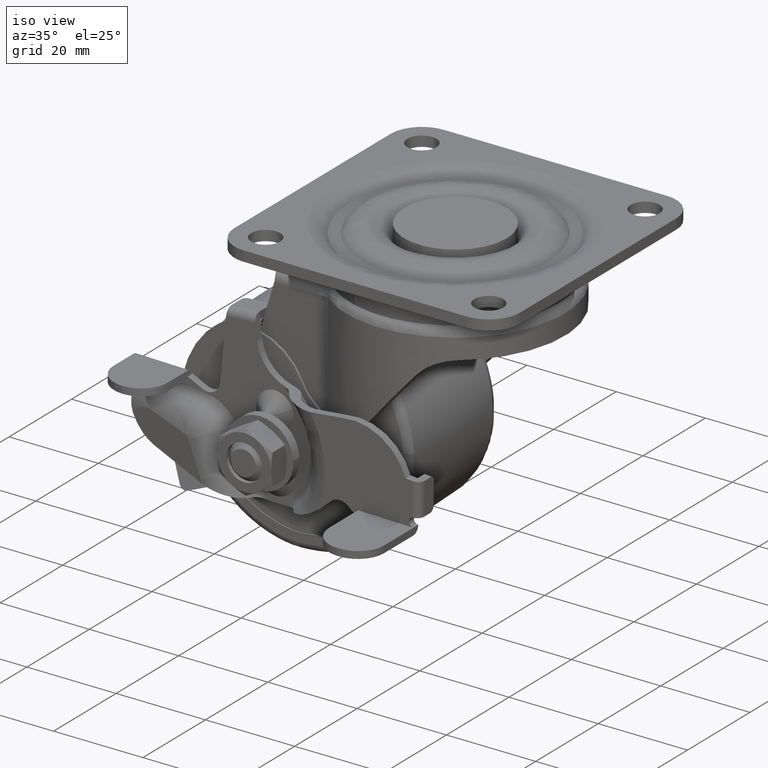
[diagram: clean part render]
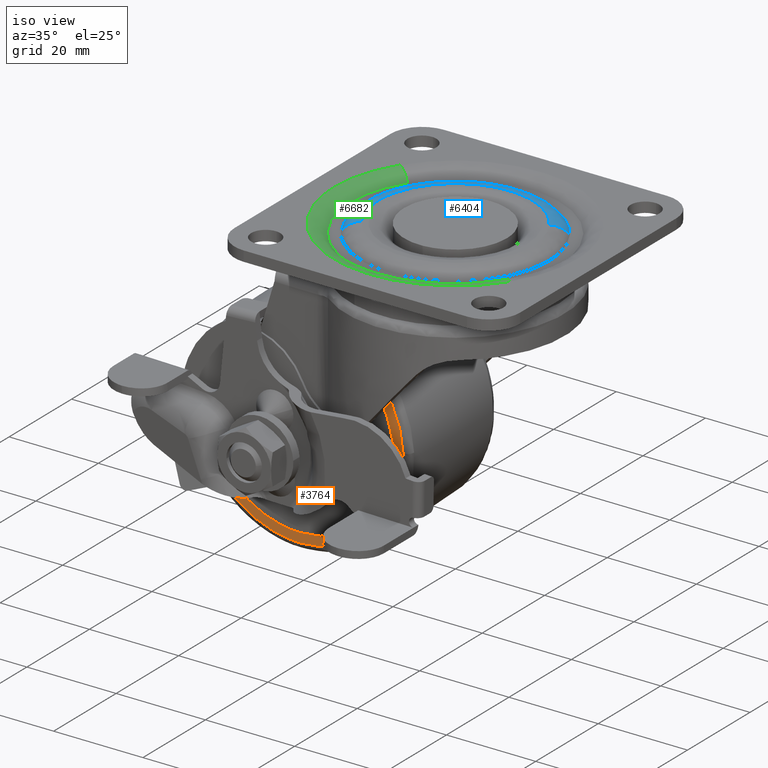
[diagram: same view with three faces highlighted in distinct colors, each labeled with its STEP entity id]
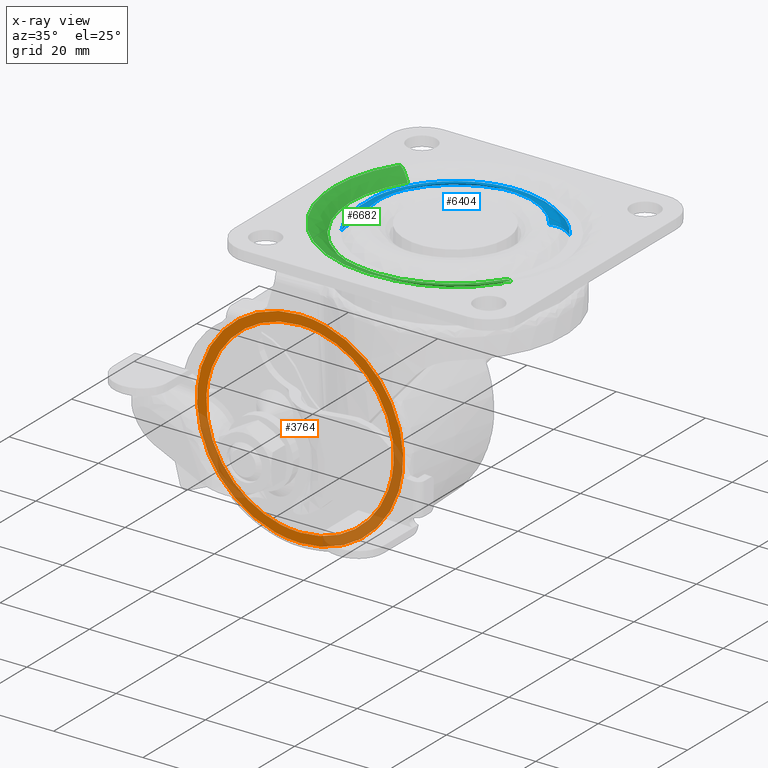
[diagram: x-ray of the same camera — body ghosted, the three highlighted faces saturated]
A machine part, iso view with three faces highlighted in distinct colors.
The next image is the same camera in x-ray (body ghosted, the three faces saturated) — at least one of them is partly hidden behind the body in this view.
Their STEP definitions:

[orange] entity #3764 — the highlighted face is a freeform B-spline surface patch.
#3564=CARTESIAN_POINT('',(-1.923151702728333,-14.0,-41.839053165172963));
#3565=VERTEX_POINT('',#3564);
#3579=CARTESIAN_POINT('',(-25.0,-14.0,-66.106032215074151));
#3580=VERTEX_POINT('',#3579);
#3581=CARTESIAN_POINT('',(-25.0,-14.0,-66.106032215074151));
#3582=CARTESIAN_POINT('',(-1.893967783235023,-13.999999999999998,-66.106032214989085));
#3583=CARTESIAN_POINT('',(-1.893967781456993,-14.0,-42.999999999825476));
#3584=CARTESIAN_POINT('',(-1.893967781412293,-14.000000000000004,-42.419159769290992));
#3585=CARTESIAN_POINT('',(-1.923151702728333,-14.000000000000004,-41.839053165172956));
#3593=(BOUNDED_CURVE()B_SPLINE_CURVE(2,(#3581,#3582,#3583,#3584,#3585),.UNSPECIFIED.,.F.,.U.)B_SPLINE_CURVE_WITH_KNOTS((3,2,3),(0.0,0.250000000000000,0.258796048279877),.UNSPECIFIED.)CURVE()GEOMETRIC_REPRESENTATION_ITEM()RATIONAL_B_SPLINE_CURVE((1.0,0.707106781186548,1.0,0.989694788425873,0.980114737960068))REPRESENTATION_ITEM(''));
#3594=EDGE_CURVE('',#3580,#3565,#3593,.T.);
#3596=CARTESIAN_POINT('',(-48.076848297271667,-14.0,-44.160946834827037));
#3597=VERTEX_POINT('',#3596);
#3598=CARTESIAN_POINT('',(-48.076848297271681,-14.000000000000004,-44.160946834827037));
#3599=CARTESIAN_POINT('',(-46.972838030130539,-14.000000000000004,-66.106032215163594));
#3600=CARTESIAN_POINT('',(-25.0,-14.0,-66.106032215074151));
#3608=(BOUNDED_CURVE()B_SPLINE_CURVE(2,(#3598,#3599,#3600),.UNSPECIFIED.,.F.,.U.)B_SPLINE_CURVE_WITH_KNOTS((3,3),(0.758796048279877,1.0),.UNSPECIFIED.)CURVE()GEOMETRIC_REPRESENTATION_ITEM()RATIONAL_B_SPLINE_CURVE((0.980114737960068,0.717411992760675,1.0))REPRESENTATION_ITEM(''));
#3609=EDGE_CURVE('',#3597,#3580,#3608,.T.);
#3652=CARTESIAN_POINT('',(-25.0,-14.0,-19.893967784925849));
#3653=VERTEX_POINT('',#3652);
#3654=CARTESIAN_POINT('',(-25.0,-14.0,-19.893967784925849));
#3655=CARTESIAN_POINT('',(-48.106032216764987,-13.999999999999998,-19.893967785010915));
#3656=CARTESIAN_POINT('',(-48.106032218543007,-14.0,-43.000000000174524));
#3657=CARTESIAN_POINT('',(-48.106032218587714,-14.000000000000002,-43.580840230709001));
#3658=CARTESIAN_POINT('',(-48.076848297271674,-14.0,-44.160946834827037));
#3666=(BOUNDED_CURVE()B_SPLINE_CURVE(2,(#3654,#3655,#3656,#3657,#3658),.UNSPECIFIED.,.F.,.U.)B_SPLINE_CURVE_WITH_KNOTS((3,2,3),(0.500000000000000,0.750000000000000,0.758796048279877),.UNSPECIFIED.)CURVE()GEOMETRIC_REPRESENTATION_ITEM()RATIONAL_B_SPLINE_CURVE((1.0,0.707106781186548,1.0,0.989694788425873,0.980114737960069))REPRESENTATION_ITEM(''));
#3667=EDGE_CURVE('',#3653,#3597,#3666,.T.);
#3669=CARTESIAN_POINT('',(-1.923151702728333,-14.000000000000004,-41.839053165172956));
#3670=CARTESIAN_POINT('',(-3.027161969869454,-14.000000000000004,-19.893967784836384));
#3671=CARTESIAN_POINT('',(-25.0,-14.0,-19.893967784925849));
#3679=(BOUNDED_CURVE()B_SPLINE_CURVE(2,(#3669,#3670,#3671),.UNSPECIFIED.,.F.,.U.)B_SPLINE_CURVE_WITH_KNOTS((3,3),(0.258796048279877,0.500000000000000),.UNSPECIFIED.)CURVE()GEOMETRIC_REPRESENTATION_ITEM()RATIONAL_B_SPLINE_CURVE((0.980114737960068,0.717411992760675,1.0))REPRESENTATION_ITEM(''));
#3680=EDGE_CURVE('',#3565,#3653,#3679,.T.);
#3687=CARTESIAN_POINT('',(-50.414144722652573,-14.0,-68.414324743792108));
#3688=CARTESIAN_POINT('',(-50.414144722652573,-14.0,-17.585674016703731));
#3689=CARTESIAN_POINT('',(0.414144722652569,-14.0,-68.414324743792108));
#3690=CARTESIAN_POINT('',(0.414144722652569,-14.0,-17.585674016703731));
#3691=B_SPLINE_SURFACE_WITH_KNOTS('',1,1,((#3687,#3689),(#3688,#3690)),.UNSPECIFIED.,.F.,.F.,.U.,(2,2),(2,2),(0.0,50.828650727088380),(0.0,50.828289445305131),.UNSPECIFIED.);
#3692=ORIENTED_EDGE('',*,*,#3594,.T.);
#3693=ORIENTED_EDGE('',*,*,#3680,.T.);
#3694=ORIENTED_EDGE('',*,*,#3667,.T.);
#3695=ORIENTED_EDGE('',*,*,#3609,.T.);
#3696=EDGE_LOOP('',(#3692,#3693,#3694,#3695));
#3697=FACE_OUTER_BOUND('',#3696,.T.);
#3698=CARTESIAN_POINT('',(-25.0,-14.0,-22.0));
#3699=VERTEX_POINT('',#3698);
#3700=CARTESIAN_POINT('',(-45.960830893710551,-14.000000000000201,-41.717982743772509));
#3701=VERTEX_POINT('',#3700);
#3702=CARTESIAN_POINT('',(-25.0,-14.0,-22.0));
#3703=CARTESIAN_POINT('',(-44.754829363346836,-13.999999999999995,-21.999999999999996));
#3704=CARTESIAN_POINT('',(-45.960830893710657,-14.000000000000004,-41.717982743772495));
#3712=(BOUNDED_CURVE()B_SPLINE_CURVE(2,(#3702,#3703,#3704),.UNSPECIFIED.,.F.,.U.)B_SPLINE_CURVE_WITH_KNOTS((3,3),(0.500000000000000,0.739332979314900),.UNSPECIFIED.)CURVE()GEOMETRIC_REPRESENTATION_ITEM()RATIONAL_B_SPLINE_CURVE((1.0,0.719603973280982,0.976072078263746))REPRESENTATION_ITEM(''));
#3713=EDGE_CURVE('',#3699,#3701,#3712,.T.);
#3714=ORIENTED_EDGE('',*,*,#3713,.F.);
#3715=CARTESIAN_POINT('',(-4.039169106289453,-14.000000000000201,-44.282017256227512));
#3716=VERTEX_POINT('',#3715);
#3717=CARTESIAN_POINT('',(-4.039169106289453,-14.000000000000203,-44.282017256227505));
#3718=CARTESIAN_POINT('',(-4.000000000000001,-14.000000000000002,-43.641606989360476));
#3719=CARTESIAN_POINT('',(-4.0,-14.0,-43.0));
#3720=CARTESIAN_POINT('',(-4.0,-13.999999999999998,-21.999999999999993));
#3721=CARTESIAN_POINT('',(-25.0,-14.0,-22.0));
#3729=(BOUNDED_CURVE()B_SPLINE_CURVE(2,(#3717,#3718,#3719,#3720,#3721),.UNSPECIFIED.,.F.,.U.)B_SPLINE_CURVE_WITH_KNOTS((3,2,3),(0.239332979314900,0.250000000000000,0.500000000000000),.UNSPECIFIED.)CURVE()GEOMETRIC_REPRESENTATION_ITEM()RATIONAL_B_SPLINE_CURVE((0.976072078263746,0.987502807905565,1.0,0.707106781186547,1.0))REPRESENTATION_ITEM(''));
#3730=EDGE_CURVE('',#3716,#3699,#3729,.T.);
#3731=ORIENTED_EDGE('',*,*,#3730,.F.);
#3732=CARTESIAN_POINT('',(-25.0,-14.0,-64.0));
#3733=VERTEX_POINT('',#3732);
#3734=CARTESIAN_POINT('',(-25.0,-14.0,-64.0));
#3735=CARTESIAN_POINT('',(-5.245170636653185,-14.000000000000005,-64.000000000000014));
#3736=CARTESIAN_POINT('',(-4.039169106289350,-13.999999999999996,-44.282017256227512));
#3744=(BOUNDED_CURVE()B_SPLINE_CURVE(2,(#3734,#3735,#3736),.UNSPECIFIED.,.F.,.U.)B_SPLINE_CURVE_WITH_KNOTS((3,3),(0.0,0.239332979314900),.UNSPECIFIED.)CURVE()GEOMETRIC_REPRESENTATION_ITEM()RATIONAL_B_SPLINE_CURVE((1.0,0.719603973280983,0.976072078263746))REPRESENTATION_ITEM(''));
#3745=EDGE_CURVE('',#3733,#3716,#3744,.T.);
#3746=ORIENTED_EDGE('',*,*,#3745,.F.);
#3747=CARTESIAN_POINT('',(-45.960830893710551,-14.000000000000199,-41.717982743772509));
#3748=CARTESIAN_POINT('',(-46.000000000000007,-13.999999999999998,-42.358393010639531));
#3749=CARTESIAN_POINT('',(-46.0,-14.0,-43.0));
#3750=CARTESIAN_POINT('',(-46.000000000000014,-13.999999999999998,-64.0));
#3751=CARTESIAN_POINT('',(-25.0,-14.0,-64.0));
#3759=(BOUNDED_CURVE()B_SPLINE_CURVE(2,(#3747,#3748,#3749,#3750,#3751),.UNSPECIFIED.,.F.,.U.)B_SPLINE_CURVE_WITH_KNOTS((3,2,3),(0.739332979314900,0.750000000000000,1.0),.UNSPECIFIED.)CURVE()GEOMETRIC_REPRESENTATION_ITEM()RATIONAL_B_SPLINE_CURVE((0.976072078263746,0.987502807905565,1.0,0.707106781186547,1.0))REPRESENTATION_ITEM(''));
#3760=EDGE_CURVE('',#3701,#3733,#3759,.T.);
#3761=ORIENTED_EDGE('',*,*,#3760,.F.);
#3762=EDGE_LOOP('',(#3714,#3731,#3746,#3761));
#3763=FACE_BOUND('',#3762,.T.);
#3764=ADVANCED_FACE('',(#3697,#3763),#3691,.F.);

[blue] entity #6404 — the highlighted face is a freeform B-spline surface patch.
#5892=CARTESIAN_POINT('',(-17.258342613225999,0.0,0.0));
#5893=VERTEX_POINT('',#5892);
#5894=CARTESIAN_POINT('',(-14.571700617706851,-9.247482410175284,-9.096303E-016));
#5895=VERTEX_POINT('',#5894);
#5896=CARTESIAN_POINT('',(-17.258342613225999,0.0,0.0));
#5897=CARTESIAN_POINT('',(-17.258342613997595,-5.014012032377962,-4.548151E-016));
#5898=CARTESIAN_POINT('',(-14.571700617706840,-9.247482410175284,-9.096303E-016));
#5906=(BOUNDED_CURVE()B_SPLINE_CURVE(2,(#5896,#5897,#5898),.UNSPECIFIED.,.F.,.U.)B_SPLINE_CURVE_WITH_KNOTS((3,3),(0.0,0.091683542669455),.UNSPECIFIED.)CURVE()GEOMETRIC_REPRESENTATION_ITEM()RATIONAL_B_SPLINE_CURVE((1.0,0.892586048301291,0.863956829593489))REPRESENTATION_ITEM(''));
#5907=EDGE_CURVE('',#5893,#5895,#5906,.T.);
#5935=CARTESIAN_POINT('',(14.571700617706840,9.247482410175284,-1.030914E-015));
#5936=VERTEX_POINT('',#5935);
#5950=CARTESIAN_POINT('',(14.571700617706840,9.247482410175284,-1.030914E-015));
#5951=CARTESIAN_POINT('',(13.920459071502810,10.274037494522400,-1.020371E-015));
#5952=CARTESIAN_POINT('',(12.671246500083090,11.846589534789310,-9.967062E-016));
#5953=CARTESIAN_POINT('',(10.675274872438941,13.618634377470750,-9.524686E-016));
#5954=CARTESIAN_POINT('',(8.856984496065177,14.863327073399279,-9.089620E-016));
#5955=CARTESIAN_POINT('',(6.872788729412418,15.888819269626330,-8.585981E-016));
#5956=CARTESIAN_POINT('',(4.876621866532670,16.597503764392961,-8.051278E-016));
#5957=CARTESIAN_POINT('',(2.813562639379470,17.065164477155768,-7.475681E-016));
#5958=CARTESIAN_POINT('',(0.968319337083173,17.268415360175482,-6.942196E-016));
#5959=CARTESIAN_POINT('',(-0.973159719335036,17.261611082920119,-6.361742E-016));
#5960=CARTESIAN_POINT('',(-3.019687422567285,17.042576872617019,-5.731497E-016));
#5961=CARTESIAN_POINT('',(-5.474237655447063,16.448577171818251,-4.946850E-016));
#5962=CARTESIAN_POINT('',(-7.962229009101100,15.393806059649171,-4.112234E-016));
#5963=CARTESIAN_POINT('',(-9.954196623234225,14.146293328210350,-3.409041E-016));
#5964=CARTESIAN_POINT('',(-11.650496569826510,12.787994507928371,-2.784543E-016));
#5965=CARTESIAN_POINT('',(-13.014353456110809,11.402053515604210,-2.256937E-016));
#5966=CARTESIAN_POINT('',(-14.442681499395070,9.539059085028143,-1.668681E-016));
#5967=CARTESIAN_POINT('',(-15.516490178102361,7.677743834695280,-1.186455E-016));
#5968=CARTESIAN_POINT('',(-16.436494891184172,5.423100562718422,-7.160358E-017));
#5969=CARTESIAN_POINT('',(-17.084777404230099,2.952324386201291,-3.080181E-017));
#5970=CARTESIAN_POINT('',(-17.258453354447902,1.042009888307002,-9.038424E-018));
#5971=CARTESIAN_POINT('',(-17.258342613225999,0.0,0.0));
#5972=B_SPLINE_CURVE_WITH_KNOTS('',3,(#5950,#5951,#5952,#5953,#5954,#5955,#5956,#5957,#5958,#5959,#5960,#5961,#5962,#5963,#5964,#5965,#5966,#5967,#5968,#5969,#5970,#5971),.UNSPECIFIED.,.F.,.U.,(4,1,1,1,1,1,1,1,1,1,1,1,1,1,1,1,1,1,1,4),(0.000000125075360,3.647057829728944,5.991603058400848,7.988806573501741,10.246529472537640,12.677884906082040,14.327779158440419,16.585477718324661,18.235213999554830,20.145604380339670,22.750673537531050,25.789877092874860,28.221276031994599,29.784297625491639,32.302518737085052,34.039205775406437,36.817915864130853,38.728288037996691,41.333358741510487,44.459366438048448),.UNSPECIFIED.);
#5973=EDGE_CURVE('',#5936,#5893,#5972,.T.);
#6260=CARTESIAN_POINT('',(-17.730886435414082,-11.252362694500251,-1.999999999790994));
#6261=VERTEX_POINT('',#6260);
#6262=CARTESIAN_POINT('',(-17.730886435414085,-11.252362694500251,-1.999999999790994));
#6263=CARTESIAN_POINT('',(-16.602605786164538,-10.536334021500771,-9.769623E-010));
#6264=CARTESIAN_POINT('',(-14.571700617706851,-9.247482410175284,-9.096303E-016));
#6272=(BOUNDED_CURVE()B_SPLINE_CURVE(2,(#6262,#6263,#6264),.UNSPECIFIED.,.F.,.U.)B_SPLINE_CURVE_WITH_KNOTS((3,3),(-1.614008289654322,-0.371524495243250),.UNSPECIFIED.)CURVE()GEOMETRIC_REPRESENTATION_ITEM()RATIONAL_B_SPLINE_CURVE((0.912877125464724,0.806189653355523,0.915390887304336))REPRESENTATION_ITEM(''));
#6273=EDGE_CURVE('',#6261,#5895,#6272,.T.);
#6303=CARTESIAN_POINT('',(17.730886435414082,11.252362694500251,-1.999999999790994));
#6304=VERTEX_POINT('',#6303);
#6318=CARTESIAN_POINT('',(17.730886435414074,11.252362694500253,-1.999999999790994));
#6319=CARTESIAN_POINT('',(16.602605786164538,10.536334021500771,-9.769616E-010));
#6320=CARTESIAN_POINT('',(14.571700617706838,9.247482410175284,-1.030914E-015));
#6328=(BOUNDED_CURVE()B_SPLINE_CURVE(2,(#6318,#6319,#6320),.UNSPECIFIED.,.F.,.U.)B_SPLINE_CURVE_WITH_KNOTS((3,3),(-1.614008289654322,-0.371524495243249),.UNSPECIFIED.)CURVE()GEOMETRIC_REPRESENTATION_ITEM()RATIONAL_B_SPLINE_CURVE((0.912877125464724,0.806189653355523,0.915390887304336))REPRESENTATION_ITEM(''));
#6329=EDGE_CURVE('',#6304,#5936,#6328,.T.);
#6335=CARTESIAN_POINT('',(17.826326384439820,11.312930727885908,-2.178075291639832));
#6336=CARTESIAN_POINT('',(6.513395656553909,29.139257112325733,-2.178075291639832));
#6337=CARTESIAN_POINT('',(-11.312930727885908,17.826326384439820,-2.178075291639832));
#6338=CARTESIAN_POINT('',(-29.139257112325733,6.513395656553911,-2.178075291639832));
#6339=CARTESIAN_POINT('',(-17.826326384439820,-11.312930727885908,-2.178075291639832));
#6340=CARTESIAN_POINT('',(16.657308838730422,10.571049634211032,0.120462497382901));
#6341=CARTESIAN_POINT('',(6.086259204519395,27.228358472941455,0.120462497382901));
#6342=CARTESIAN_POINT('',(-10.571049634211029,16.657308838730422,0.120462497382901));
#6343=CARTESIAN_POINT('',(-27.228358472941455,6.086259204519397,0.120462497382901));
#6344=CARTESIAN_POINT('',(-16.657308838730437,-10.571049634211029,0.120462497382901));
#6345=CARTESIAN_POINT('',(14.394171966331928,9.134819302003235,-0.004914839208650));
#6346=CARTESIAN_POINT('',(5.259352664328691,23.528991268335162,-0.004914839208650));
#6347=CARTESIAN_POINT('',(-9.134819302003233,14.394171966331928,-0.004914839208650));
#6348=CARTESIAN_POINT('',(-23.528991268335162,5.259352664328692,-0.004914839208650));
#6349=CARTESIAN_POINT('',(-14.394171966331928,-9.134819302003233,-0.004914839208650));
#6357=(BOUNDED_SURFACE()B_SPLINE_SURFACE(2,2,((#6335,#6340,#6345),(#6336,#6341,#6346),(#6337,#6342,#6347),(#6338,#6343,#6348),(#6339,#6344,#6349)),.UNSPECIFIED.,.F.,.F.,.U.)B_SPLINE_SURFACE_WITH_KNOTS((3,2,3),(3,3),(0.0,34.981224392567803,69.962448785135592),(0.0,4.959281415207913),.UNSPECIFIED.)GEOMETRIC_REPRESENTATION_ITEM()RATIONAL_B_SPLINE_SURFACE(((0.924073850440199,0.794867366459453,0.926838736098646),(0.653418885963428,0.562056104967372,0.655373955361721),(0.924073850440199,0.794867366459453,0.926838736098646),(0.653418885963428,0.562056104967372,0.655373955361721),(0.924073850440199,0.794867366459453,0.926838736098646)))REPRESENTATION_ITEM('')SURFACE());
#6358=ORIENTED_EDGE('',*,*,#5907,.F.);
#6359=ORIENTED_EDGE('',*,*,#5973,.F.);
#6360=ORIENTED_EDGE('',*,*,#6329,.F.);
#6361=CARTESIAN_POINT('',(-21.0,0.0,-2.000000000000093));
#6362=VERTEX_POINT('',#6361);
#6363=CARTESIAN_POINT('',(-21.0,0.0,-2.000000000000093));
#6364=CARTESIAN_POINT('',(-21.000157563060561,1.373599583651773,-1.999999999998106));
#6365=CARTESIAN_POINT('',(-20.760691387962151,3.803709976278875,-1.999999999993399));
#6366=CARTESIAN_POINT('',(-19.803330277210531,7.240245758680937,-1.999999999983663));
#6367=CARTESIAN_POINT('',(-18.601569437127200,9.876681138674545,-1.999999999973874));
#6368=CARTESIAN_POINT('',(-17.050524711034360,12.358940946669239,-1.999999999962543));
#6369=CARTESIAN_POINT('',(-15.057040783771701,14.790349124774860,-1.999999999949114));
#6370=CARTESIAN_POINT('',(-12.401616787442361,17.074684308068051,-1.999999999932633));
#6371=CARTESIAN_POINT('',(-9.855770537078593,18.598309566718420,-1.999999999917687));
#6372=CARTESIAN_POINT('',(-7.638582164108176,19.598071026769290,-1.999999999905226));
#6373=CARTESIAN_POINT('',(-5.499280315978242,20.320143094701521,-1.999999999893522));
#6374=CARTESIAN_POINT('',(-3.046013954175143,20.829598317274030,-1.999999999880586));
#6375=CARTESIAN_POINT('',(-0.374253534988926,21.054553456533640,-1.999999999866912));
#6376=CARTESIAN_POINT('',(2.165372780688515,20.941967456283201,-1.999999999854566));
#6377=CARTESIAN_POINT('',(4.982167526451536,20.465506430023421,-1.999999999840988));
#6378=CARTESIAN_POINT('',(7.648161248947837,19.638192121647432,-1.999999999829135));
#6379=CARTESIAN_POINT('',(10.258246705917051,18.387536177111180,-1.999999999817861));
#6380=CARTESIAN_POINT('',(12.334179931763019,17.049274058277351,-1.999999999809471));
#6381=CARTESIAN_POINT('',(14.385298114839721,15.379462233538410,-1.999999999801743));
#6382=CARTESIAN_POINT('',(16.184764082889512,13.483137742611101,-1.999999999795276));
#6383=CARTESIAN_POINT('',(17.296840612859079,11.936323470781680,-1.999999999792412));
#6384=CARTESIAN_POINT('',(17.730886435414082,11.252362694500251,-1.999999999790994));
#6385=B_SPLINE_CURVE_WITH_KNOTS('',3,(#6363,#6364,#6365,#6366,#6367,#6368,#6369,#6370,#6371,#6372,#6373,#6374,#6375,#6376,#6377,#6378,#6379,#6380,#6381,#6382,#6383,#6384),.UNSPECIFIED.,.F.,.U.,(4,1,1,1,1,1,1,1,1,1,1,1,1,1,1,1,1,1,1,4),(8.079120E-009,4.120770016423307,7.290550371332273,10.671732724937099,12.784938330681660,16.060439348681189,20.075554773261072,23.245405692430211,24.935950351490899,27.366155409768041,30.007717182455050,32.437920070996853,35.396343371259903,37.615211999657497,40.996359932681820,43.743532750522327,46.279394831262628,48.392609432710763,51.668093055544247,54.098282557785652),.UNSPECIFIED.);
#6386=EDGE_CURVE('',#6362,#6304,#6385,.T.);
#6387=ORIENTED_EDGE('',*,*,#6386,.F.);
#6388=CARTESIAN_POINT('',(-17.730886435414082,-11.252362694500253,-1.999999999790994));
#6389=CARTESIAN_POINT('',(-20.999999999941021,-6.101063991343208,-1.999999999895544));
#6390=CARTESIAN_POINT('',(-21.0,0.0,-2.000000000000093));
#6398=(BOUNDED_CURVE()B_SPLINE_CURVE(2,(#6388,#6389,#6390),.UNSPECIFIED.,.F.,.U.)B_SPLINE_CURVE_WITH_KNOTS((3,3),(0.908316457331470,1.0),.UNSPECIFIED.)CURVE()GEOMETRIC_REPRESENTATION_ITEM()RATIONAL_B_SPLINE_CURVE((0.863956829594067,0.892586048302376,1.0))REPRESENTATION_ITEM(''));
#6399=EDGE_CURVE('',#6261,#6362,#6398,.T.);
#6400=ORIENTED_EDGE('',*,*,#6399,.F.);
#6401=ORIENTED_EDGE('',*,*,#6273,.T.);
#6402=EDGE_LOOP('',(#6358,#6359,#6360,#6387,#6400,#6401));
#6403=FACE_OUTER_BOUND('',#6402,.T.);
#6404=ADVANCED_FACE('',(#6403),#6357,.T.);

[green] entity #6682 — the highlighted face is a freeform B-spline surface patch.
#6410=CARTESIAN_POINT('',(19.681908941006970,-12.840267148267850,-1.999999999968982));
#6411=VERTEX_POINT('',#6410);
#6412=CARTESIAN_POINT('',(-23.500000000000000,0.0,-2.000000000000093));
#6413=VERTEX_POINT('',#6412);
#6414=CARTESIAN_POINT('',(19.681908941006970,-12.840267148267850,-1.999999999968982));
#6415=CARTESIAN_POINT('',(18.739253701988300,-14.285809929466771,-1.999999999969318));
#6416=CARTESIAN_POINT('',(16.809004173028448,-16.632226043347131,-1.999999999970149));
#6417=CARTESIAN_POINT('',(13.682242790906971,-19.211899724251449,-1.999999999971677));
#6418=CARTESIAN_POINT('',(10.921376571276051,-20.874714754254679,-1.999999999973237));
#6419=CARTESIAN_POINT('',(8.337985522785203,-22.026666498816290,-1.999999999974626));
#6420=CARTESIAN_POINT('',(5.302041343943124,-22.980205403749821,-1.999999999976546));
#6421=CARTESIAN_POINT('',(2.425372165806838,-23.441771793289639,-1.999999999978304));
#6422=CARTESIAN_POINT('',(-0.517098123482748,-23.534123291543430,-1.999999999980251));
#6423=CARTESIAN_POINT('',(-3.417827578676980,-23.334592657835529,-1.999999999982208));
#6424=CARTESIAN_POINT('',(-6.495079239311076,-22.666068641941521,-1.999999999984376));
#6425=CARTESIAN_POINT('',(-9.331968271619084,-21.617143695561278,-1.999999999986465));
#6426=CARTESIAN_POINT('',(-11.969144707913660,-20.304863501877609,-1.999999999988444));
#6427=CARTESIAN_POINT('',(-14.837740185603341,-18.365710642969319,-1.999999999990777));
#6428=CARTESIAN_POINT('',(-17.400836369509278,-15.918958690349820,-1.999999999992885));
#6429=CARTESIAN_POINT('',(-19.215184003698798,-13.597374440213430,-1.999999999994567));
#6430=CARTESIAN_POINT('',(-20.577701850382841,-11.439925001919180,-1.999999999995930));
#6431=CARTESIAN_POINT('',(-21.568373520642659,-9.430948842685806,-1.999999999996951));
#6432=CARTESIAN_POINT('',(-22.448532527806140,-7.078277081024744,-1.999999999998007));
#6433=CARTESIAN_POINT('',(-23.247644910311990,-4.078869100091454,-1.999999999999123));
#6434=CARTESIAN_POINT('',(-23.500241036807552,-1.568838199609178,-1.999999999999785));
#6435=CARTESIAN_POINT('',(-23.500000000000000,0.0,-2.000000000000093));
#6436=B_SPLINE_CURVE_WITH_KNOTS('',3,(#6414,#6415,#6416,#6417,#6418,#6419,#6420,#6421,#6422,#6423,#6424,#6425,#6426,#6427,#6428,#6429,#6430,#6431,#6432,#6433,#6434,#6435),.UNSPECIFIED.,.F.,.U.,(4,1,1,1,1,1,1,1,1,1,1,1,1,1,1,1,1,1,1,4),(0.000000107553674,5.177156078862851,9.060038118559312,12.119278113855319,14.825501119281091,17.531770711519808,21.649924216659642,23.532494102343350,26.356415090979251,30.356931889156840,32.945490756485214,35.416432767030230,39.181631495366773,43.299839871595204,46.006091025776662,48.006341258892029,50.947938727919940,52.712848584316291,55.536788669859718,60.243243651650189),.UNSPECIFIED.);
#6437=EDGE_CURVE('',#6411,#6413,#6436,.T.);
#6454=CARTESIAN_POINT('',(-19.681908941006970,12.840267148267859,-1.999999999968982));
#6455=VERTEX_POINT('',#6454);
#6483=CARTESIAN_POINT('',(-23.500000000000000,0.0,-2.000000000000093));
#6484=CARTESIAN_POINT('',(-23.500000000008708,6.987793855909099,-1.999999999984538));
#6485=CARTESIAN_POINT('',(-19.681908941006970,12.840267148267863,-1.999999999968982));
#6493=(BOUNDED_CURVE()B_SPLINE_CURVE(2,(#6483,#6484,#6485),.UNSPECIFIED.,.F.,.U.)B_SPLINE_CURVE_WITH_KNOTS((3,3),(0.0,0.093601467029280),.UNSPECIFIED.)CURVE()GEOMETRIC_REPRESENTATION_ITEM()RATIONAL_B_SPLINE_CURVE((1.0,0.890339060144532,0.862793519059315))REPRESENTATION_ITEM(''));
#6494=EDGE_CURVE('',#6413,#6455,#6493,.T.);
#6583=CARTESIAN_POINT('',(19.587387326071987,-12.778602256375427,-2.177778589317673));
#6584=CARTESIAN_POINT('',(6.808785069696557,-32.365989582447405,-2.177778589317675));
#6585=CARTESIAN_POINT('',(-12.778602256375427,-19.587387326071987,-2.177778589317673));
#6586=CARTESIAN_POINT('',(-32.365989582447426,-6.808785069696545,-2.177778589317675));
#6587=CARTESIAN_POINT('',(-19.587387326071994,12.778602256375414,-2.177778589317673));
#6588=CARTESIAN_POINT('',(20.747138024575953,-13.535211223463634,0.120652189882761));
#6589=CARTESIAN_POINT('',(7.211926801112326,-34.282349248039580,0.120652189882761));
#6590=CARTESIAN_POINT('',(-13.535211223463634,-20.747138024575953,0.120652189882761));
#6591=CARTESIAN_POINT('',(-34.282349248039580,-7.211926801112312,0.120652189882761));
#6592=CARTESIAN_POINT('',(-20.747138024575968,13.535211223463621,0.120652189882761));
#6593=CARTESIAN_POINT('',(22.992039990343130,-14.999761285579888,-0.004931002402365));
#6594=CARTESIAN_POINT('',(7.992278704763237,-37.991801275923024,-0.004931002402365));
#6595=CARTESIAN_POINT('',(-14.999761285579888,-22.992039990343130,-0.004931002402365));
#6596=CARTESIAN_POINT('',(-37.991801275923024,-7.992278704763222,-0.004931002402365));
#6597=CARTESIAN_POINT('',(-22.992039990343130,14.999761285579877,-0.004931002402365));
#6605=(BOUNDED_SURFACE()B_SPLINE_SURFACE(2,2,((#6583,#6588,#6593),(#6584,#6589,#6594),(#6585,#6590,#6595),(#6586,#6591,#6596),(#6587,#6592,#6597)),.UNSPECIFIED.,.F.,.F.,.U.)B_SPLINE_SURFACE_WITH_KNOTS((3,2,3),(3,3),(0.0,45.484398540951489,90.968797081902977),(0.0,4.959283534288572),.UNSPECIFIED.)GEOMETRIC_REPRESENTATION_ITEM()RATIONAL_B_SPLINE_SURFACE(((0.923531344887134,0.793043540680917,0.923132209010213),(0.653035276608024,0.560766465391666,0.652753044922839),(0.923531344887134,0.793043540680917,0.923132209010213),(0.653035276608024,0.560766465391666,0.652753044922839),(0.923531344887134,0.793043540680917,0.923132209010213)))REPRESENTATION_ITEM('')SURFACE());
#6606=ORIENTED_EDGE('',*,*,#6437,.T.);
#6607=ORIENTED_EDGE('',*,*,#6494,.T.);
#6608=CARTESIAN_POINT('',(-22.815651917971120,14.884687591418970,-7.305267E-016));
#6609=VERTEX_POINT('',#6608);
#6610=CARTESIAN_POINT('',(-19.681908941006967,12.840267148267856,-1.999999999968982));
#6611=CARTESIAN_POINT('',(-20.801102861356874,13.570417306547085,-4.141851E-010));
#6612=CARTESIAN_POINT('',(-22.815651917971117,14.884687591418972,-7.305267E-016));
#6620=(BOUNDED_CURVE()B_SPLINE_CURVE(2,(#6610,#6611,#6612),.UNSPECIFIED.,.F.,.U.)B_SPLINE_CURVE_WITH_KNOTS((3,3),(-1.617245963099221,-0.384830415820684),.UNSPECIFIED.)CURVE()GEOMETRIC_REPRESENTATION_ITEM()RATIONAL_B_SPLINE_CURVE((0.912217013800503,0.804339750211911,0.911854121064959))REPRESENTATION_ITEM(''));
#6621=EDGE_CURVE('',#6455,#6609,#6620,.T.);
#6622=ORIENTED_EDGE('',*,*,#6621,.T.);
#6623=CARTESIAN_POINT('',(-27.241657386774001,0.0,0.0));
#6624=VERTEX_POINT('',#6623);
#6625=CARTESIAN_POINT('',(-27.241657386774001,0.0,0.0));
#6626=CARTESIAN_POINT('',(-27.241657386449518,8.100386642872243,-3.652634E-016));
#6627=CARTESIAN_POINT('',(-22.815651917971113,14.884687591418968,-7.305267E-016));
#6635=(BOUNDED_CURVE()B_SPLINE_CURVE(2,(#6625,#6626,#6627),.UNSPECIFIED.,.F.,.U.)B_SPLINE_CURVE_WITH_KNOTS((3,3),(0.0,0.093601467029519),.UNSPECIFIED.)CURVE()GEOMETRIC_REPRESENTATION_ITEM()RATIONAL_B_SPLINE_CURVE((1.0,0.890339060144252,0.862793519059174))REPRESENTATION_ITEM(''));
#6636=EDGE_CURVE('',#6624,#6609,#6635,.T.);
#6637=ORIENTED_EDGE('',*,*,#6636,.F.);
#6638=CARTESIAN_POINT('',(22.815651917971120,-14.884687591418960,-7.914040E-016));
#6639=VERTEX_POINT('',#6638);
#6640=CARTESIAN_POINT('',(22.815651917971120,-14.884687591418960,-7.914040E-016));
#6641=CARTESIAN_POINT('',(21.896637361982219,-16.293709831957401,-7.841406E-016));
#6642=CARTESIAN_POINT('',(20.165275300011231,-18.475509761494258,-7.684152E-016));
#6643=CARTESIAN_POINT('',(17.192014942617838,-21.230987820492761,-7.371283E-016));
#6644=CARTESIAN_POINT('',(14.292941722440540,-23.288581467051671,-7.039047E-016));
#6645=CARTESIAN_POINT('',(11.305507698712409,-24.851548995527079,-6.672612E-016));
#6646=CARTESIAN_POINT('',(8.288497891711998,-26.010920625604921,-6.284449E-016));
#6647=CARTESIAN_POINT('',(5.510799284749238,-26.732687956868912,-5.912145E-016));
#6648=CARTESIAN_POINT('',(2.314138658158131,-27.204636905100429,-5.468195E-016));
#6649=CARTESIAN_POINT('',(-0.646906032321600,-27.297698987320370,-5.042105E-016));
#6650=CARTESIAN_POINT('',(-3.911932978338217,-27.015377342164609,-4.555645E-016));
#6651=CARTESIAN_POINT('',(-7.173506552230196,-26.366499791702779,-4.053855E-016));
#6652=CARTESIAN_POINT('',(-10.621698747037410,-25.179316240097538,-3.501706E-016));
#6653=CARTESIAN_POINT('',(-13.831988459978451,-23.551487138519860,-2.965082E-016));
#6654=CARTESIAN_POINT('',(-16.473391060898681,-21.765830648740600,-2.504275E-016));
#6655=CARTESIAN_POINT('',(-18.589004893675021,-19.967143895848690,-2.119280E-016));
#6656=CARTESIAN_POINT('',(-20.496724683607709,-18.013753912614909,-1.757800E-016));
#6657=CARTESIAN_POINT('',(-22.314509610763618,-15.735442279949231,-1.395350E-016));
#6658=CARTESIAN_POINT('',(-24.237027262242400,-12.640047164170600,-9.823946E-017));
#6659=CARTESIAN_POINT('',(-25.683813783221780,-9.339156944765829,-6.296667E-017));
#6660=CARTESIAN_POINT('',(-26.550375221158770,-6.271769567832219,-3.713055E-017));
#6661=CARTESIAN_POINT('',(-27.096117425116979,-3.318946218135167,-1.644937E-017));
#6662=CARTESIAN_POINT('',(-27.241732968266220,-1.318489018038288,-5.693767E-018));
#6663=CARTESIAN_POINT('',(-27.241657386774001,0.0,0.0));
#6664=B_SPLINE_CURVE_WITH_KNOTS('',3,(#6640,#6641,#6642,#6643,#6644,#6645,#6646,#6647,#6648,#6649,#6650,#6651,#6652,#6653,#6654,#6655,#6656,#6657,#6658,#6659,#6660,#6661,#6662,#6663),.UNSPECIFIED.,.F.,.U.,(4,1,1,1,1,1,1,1,1,1,1,1,1,1,1,1,1,1,1,1,1,4),(0.000000098039393,5.046680778903394,8.320213401134879,12.139326440762771,15.685638277896000,18.413605988075972,21.823484064325939,24.278639431059549,28.097684323569531,30.689248541259261,34.099136260553472,38.054657535802832,41.600986487424549,44.874529060156732,47.602469365939967,49.921216803623047,53.058342531097622,56.331887435548509,60.832982840056147,63.833686452231909,65.879686696974929,69.835140570660897),.UNSPECIFIED.);
#6665=EDGE_CURVE('',#6639,#6624,#6664,.T.);
#6666=ORIENTED_EDGE('',*,*,#6665,.F.);
#6667=CARTESIAN_POINT('',(19.681908941006977,-12.840267148267856,-1.999999999968983));
#6668=CARTESIAN_POINT('',(20.801102861356888,-13.570417306547071,-4.141844E-010));
#6669=CARTESIAN_POINT('',(22.815651917971124,-14.884687591418960,-7.914040E-016));
#6677=(BOUNDED_CURVE()B_SPLINE_CURVE(2,(#6667,#6668,#6669),.UNSPECIFIED.,.F.,.U.)B_SPLINE_CURVE_WITH_KNOTS((3,3),(-1.617245963099221,-0.384830415820684),.UNSPECIFIED.)CURVE()GEOMETRIC_REPRESENTATION_ITEM()RATIONAL_B_SPLINE_CURVE((0.912217013800503,0.804339750211911,0.911854121064959))REPRESENTATION_ITEM(''));
#6678=EDGE_CURVE('',#6411,#6639,#6677,.T.);
#6679=ORIENTED_EDGE('',*,*,#6678,.F.);
#6680=EDGE_LOOP('',(#6606,#6607,#6622,#6637,#6666,#6679));
#6681=FACE_OUTER_BOUND('',#6680,.T.);
#6682=ADVANCED_FACE('',(#6681),#6605,.T.);